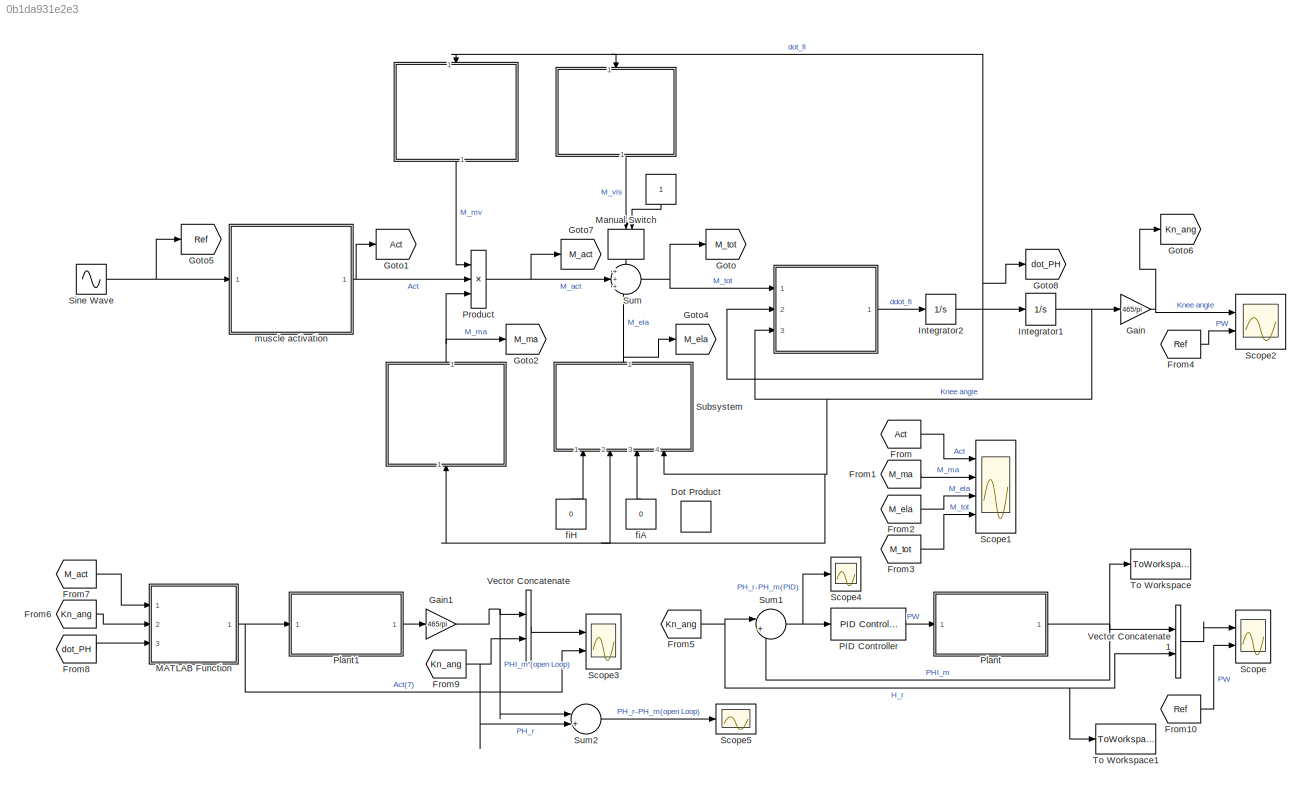
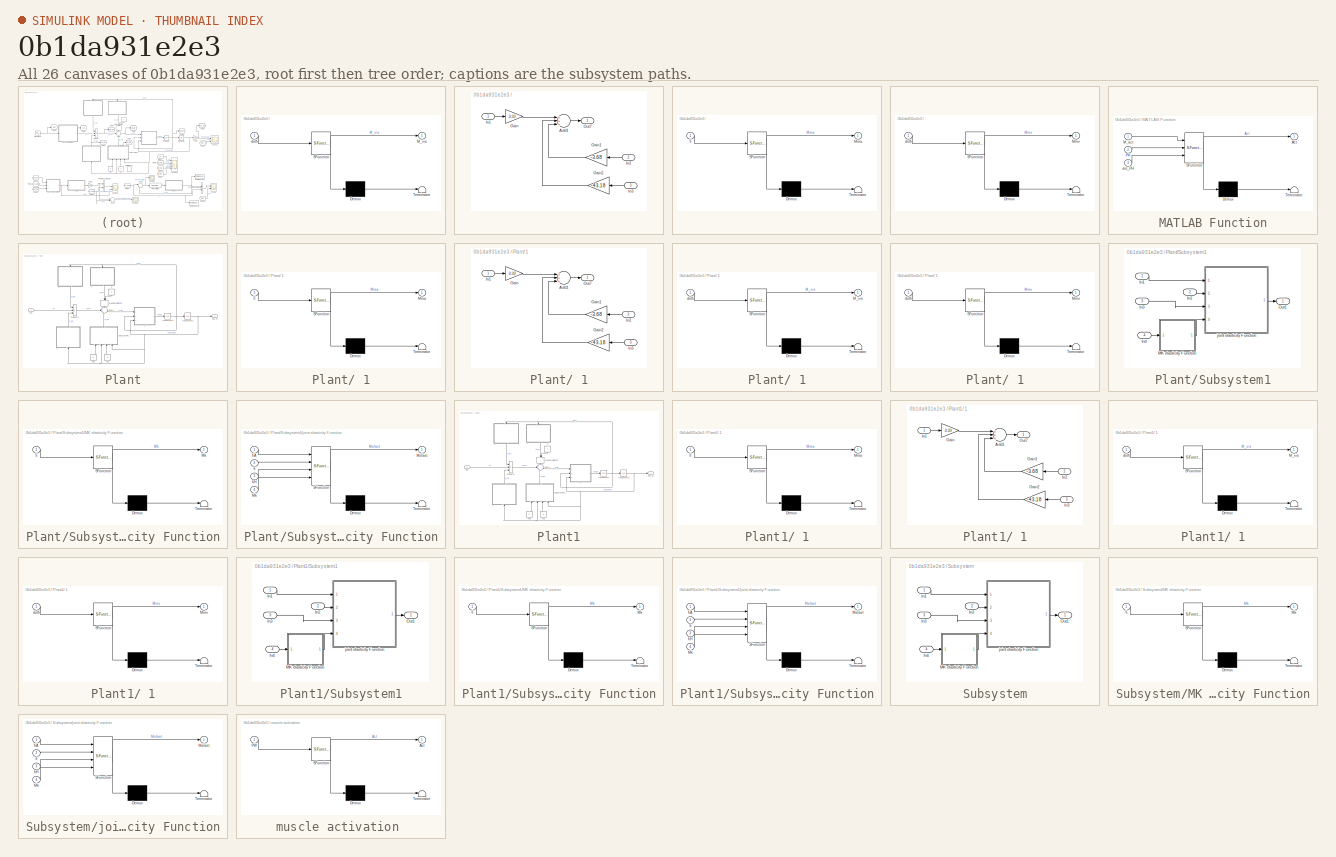
[diagram: thumbnail index - all 26 canvases of the model, root first then tree order]
MODEL slx_0b1da931e2e3
KIND model
CONFIG AbsTol = auto
CONFIG EnableMultiTasking = off
CONFIG FixedStep = 0.00001
CONFIG InitFcn = Ku=1038641.6;\nTu=0.0054;
CONFIG MaxStep = auto
CONFIG MinStep = auto
CONFIG RelTol = 1e-3
CONFIG SampleTimeConstraint = Unconstrained
CONFIG Solver = VariableStepAuto
CONFIG SolverName = VariableStepAuto
CONFIG StartTime = 0.0
CONFIG StopTime = 100
BLOCK [SubSystem]  
  ErrorFcn = Stateflow.Translate.translate
  PermitHierarchicalResolution = ExplicitOnly
  Ports = [1, 1]
  RequestExecContextInheritance = off
  SFBlockType = MATLAB Function
  TreatAsAtomicUnit = on
  Variant = off
BLOCK [Demux]  / Demux 
  Outputs = 1
  Ports = [1, 1]
BLOCK [S-Function]  / SFunction 
  EnableBusSupport = on
  FunctionName = sf_sfun
  PortCounts = [1 2]
  Ports = [1, 2]
  SFcnIsStateOwnerBlock = off
  SFunctionDeploymentMode = off
  Tag = Stateflow S-Function Main 3
BLOCK [Terminator]  / Terminator 
BLOCK [Sum]  /Add1
  InputSameDT = off
  Inputs = +++
  OutDataTypeStr = Inherit: Inherit via internal rule
  Ports = [3, 1]
  SaturateOnIntegerOverflow = off
BLOCK [Gain]  /Gain
  Gain = 3.33
  OutDataTypeStr = Inherit: Inherit via internal rule
  ParamDataTypeStr = Inherit: Inherit via internal rule
  SaturateOnIntegerOverflow = off
BLOCK [Gain]  /Gain1
  Gain = -3.68
  OutDataTypeStr = Inherit: Inherit via internal rule
  ParamDataTypeStr = Inherit: Inherit via internal rule
  SaturateOnIntegerOverflow = off
BLOCK [Gain]  /Gain2
  Gain = -43.18
  OutDataTypeStr = Inherit: Inherit via internal rule
  ParamDataTypeStr = Inherit: Inherit via internal rule
  SaturateOnIntegerOverflow = off
BLOCK [Inport]  /In1 
  IconDisplay = Port number
BLOCK [Inport]  /In2
  IconDisplay = Port number
  Port = 2
BLOCK [Inport]  /In3
  IconDisplay = Port number
  Port = 3
BLOCK [Outport]  /M_vis
  IconDisplay = Port number
BLOCK [Outport]  /Mma
  IconDisplay = Port number
BLOCK [Outport]  /Mmv
  IconDisplay = Port number
BLOCK [Outport]  /Out7
  IconDisplay = Port number
BLOCK [Inport]  /dotfi
  IconDisplay = Port number
BLOCK [Inport]  /fi
  IconDisplay = Port number
BLOCK [DotProduct] Dot Product
  OutDataTypeStr = Inherit: Inherit via internal rule
BLOCK [From] From
  GotoTag = Act
BLOCK [From] From1
  GotoTag = M_ma
BLOCK [From] From10
  GotoTag = Ref
BLOCK [From] From2
  GotoTag = M_ela
BLOCK [From] From3
  GotoTag = M_tot
BLOCK [From] From4
  GotoTag = Ref
BLOCK [From] From5
  GotoTag = Kn_ang
BLOCK [From] From6
  GotoTag = Kn_ang
BLOCK [From] From7
  GotoTag = M_act
BLOCK [From] From8
  GotoTag = dot_PH
BLOCK [From] From9
  GotoTag = Kn_ang
BLOCK [Gain] Gain
  Gain = 465/pi
  OutDataTypeStr = Inherit: Inherit via internal rule
  ParamDataTypeStr = Inherit: Inherit via internal rule
  SaturateOnIntegerOverflow = off
BLOCK [Gain] Gain1
  Gain = 465/pi
  OutDataTypeStr = Inherit: Inherit via internal rule
  ParamDataTypeStr = Inherit: Inherit via internal rule
  SaturateOnIntegerOverflow = off
BLOCK [Goto] Goto
  GotoTag = M_tot
BLOCK [Goto] Goto1
  GotoTag = Act
BLOCK [Goto] Goto2
  GotoTag = M_ma
BLOCK [Goto] Goto4
  GotoTag = M_ela
BLOCK [Goto] Goto5
  GotoTag = Ref
BLOCK [Goto] Goto6
  GotoTag = Kn_ang
BLOCK [Goto] Goto7
  GotoTag = M_act
BLOCK [Goto] Goto8
  GotoTag = dot_PH
BLOCK [Integrator] Integrator1
  InitialCondition = 0.9
  Ports = [1, 1]
BLOCK [Integrator] Integrator2
  InitialCondition = 1.8
  Ports = [1, 1]
BLOCK [SubSystem] MATLAB Function
  ErrorFcn = Stateflow.Translate.translate
  PermitHierarchicalResolution = ExplicitOnly
  Ports = [3, 1]
  RequestExecContextInheritance = off
  SFBlockType = MATLAB Function
  TreatAsAtomicUnit = on
  Variant = off
BLOCK [Demux] MATLAB Function/ Demux 
  Outputs = 1
  Ports = [1, 1]
BLOCK [S-Function] MATLAB Function/ SFunction 
  EnableBusSupport = on
  FunctionName = sf_sfun
  PortCounts = [3 2]
  Ports = [3, 2]
  SFcnIsStateOwnerBlock = off
  SFunctionDeploymentMode = off
  Tag = Stateflow S-Function Main 13
BLOCK [Terminator] MATLAB Function/ Terminator 
BLOCK [Outport] MATLAB Function/Act
  IconDisplay = Port number
BLOCK [Inport] MATLAB Function/M_act
  IconDisplay = Port number
BLOCK [Inport] MATLAB Function/PH
  IconDisplay = Port number
  Port = 2
BLOCK [Inport] MATLAB Function/dot_PH
  IconDisplay = Port number
  Port = 3
BLOCK [ManualSwitch] Manual Switch
BLOCK [Reference] PID Controller  REF=simulink/Continuous/PID Controller
  Ports = [1, 1]
  SourceBlock = simulink/Continuous/PID Controller
  SourceProductBaseCode = SL
  SourceProductName = Simulink
  SourceType = PID 1dof
BLOCK [SubSystem] Plant
  Ports = [1, 1]
  RequestExecContextInheritance = off
  Variant = off
BLOCK [SubSystem] Plant/ 1
  ErrorFcn = Stateflow.Translate.translate
  PermitHierarchicalResolution = ExplicitOnly
  Ports = [1, 1]
  RequestExecContextInheritance = off
  SFBlockType = MATLAB Function
  TreatAsAtomicUnit = on
  Variant = off
BLOCK [Demux] Plant/ 1/ Demux 
  Outputs = 1
  Ports = [1, 1]
BLOCK [S-Function] Plant/ 1/ SFunction 
  EnableBusSupport = on
  FunctionName = sf_sfun
  PortCounts = [1 2]
  Ports = [1, 2]
  SFcnIsStateOwnerBlock = off
  SFunctionDeploymentMode = off
  Tag = Stateflow S-Function Main 9
BLOCK [Terminator] Plant/ 1/ Terminator 
BLOCK [Sum] Plant/ 1/Add1
  InputSameDT = off
  Inputs = +++
  OutDataTypeStr = Inherit: Inherit via internal rule
  Ports = [3, 1]
  SaturateOnIntegerOverflow = off
BLOCK [Gain] Plant/ 1/Gain
  Gain = 3.33
  OutDataTypeStr = Inherit: Inherit via internal rule
  ParamDataTypeStr = Inherit: Inherit via internal rule
  SaturateOnIntegerOverflow = off
BLOCK [Gain] Plant/ 1/Gain1
  Gain = -3.68
  OutDataTypeStr = Inherit: Inherit via internal rule
  ParamDataTypeStr = Inherit: Inherit via internal rule
  SaturateOnIntegerOverflow = off
BLOCK [Gain] Plant/ 1/Gain2
  Gain = -43.18
  OutDataTypeStr = Inherit: Inherit via internal rule
  ParamDataTypeStr = Inherit: Inherit via internal rule
  SaturateOnIntegerOverflow = off
BLOCK [Inport] Plant/ 1/In1 
  IconDisplay = Port number
BLOCK [Inport] Plant/ 1/In2
  IconDisplay = Port number
  Port = 2
BLOCK [Inport] Plant/ 1/In3
  IconDisplay = Port number
  Port = 3
BLOCK [Outport] Plant/ 1/M_vis
  IconDisplay = Port number
BLOCK [Outport] Plant/ 1/Mma
  IconDisplay = Port number
BLOCK [Outport] Plant/ 1/Mmv
  IconDisplay = Port number
BLOCK [Outport] Plant/ 1/Out7
  IconDisplay = Port number
BLOCK [Inport] Plant/ 1/dotfi
  IconDisplay = Port number
BLOCK [Inport] Plant/ 1/fi
  IconDisplay = Port number
BLOCK [Integrator] Plant/Integrator3
  InitialCondition = 0.9
  Ports = [1, 1]
BLOCK [Integrator] Plant/Integrator4
  InitialCondition = 1.8
  Ports = [1, 1]
BLOCK [ManualSwitch] Plant/Manual Switch1
BLOCK [Outport] Plant/PHI_m
  IconDisplay = Port number
BLOCK [Inport] Plant/PW
  IconDisplay = Port number
BLOCK [Product] Plant/Product1
  InputSameDT = off
  Inputs = 3
  OutDataTypeStr = Inherit: Inherit via internal rule
  Ports = [3, 1]
  RndMeth = Floor
  SaturateOnIntegerOverflow = off
BLOCK [SubSystem] Plant/Subsystem1
  Ports = [4, 1]
  RequestExecContextInheritance = off
  Variant = off
BLOCK [Inport] Plant/Subsystem1/In1
  IconDisplay = Port number
BLOCK [Inport] Plant/Subsystem1/In2
  IconDisplay = Port number
  Port = 2
BLOCK [Inport] Plant/Subsystem1/In3
  IconDisplay = Port number
  Port = 3
BLOCK [Inport] Plant/Subsystem1/In4
  IconDisplay = Port number
  Port = 4
BLOCK [SubSystem] Plant/Subsystem1/MK elasticity Function
  ErrorFcn = Stateflow.Translate.translate
  PermitHierarchicalResolution = ExplicitOnly
  Ports = [1, 1]
  RequestExecContextInheritance = off
  SFBlockType = MATLAB Function
  TreatAsAtomicUnit = on
  Variant = off
BLOCK [Demux] Plant/Subsystem1/MK elasticity Function/ Demux 
  Outputs = 1
  Ports = [1, 1]
BLOCK [S-Function] Plant/Subsystem1/MK elasticity Function/ SFunction 
  EnableBusSupport = on
  FunctionName = sf_sfun
  PortCounts = [1 2]
  Ports = [1, 2]
  SFcnIsStateOwnerBlock = off
  SFunctionDeploymentMode = off
  Tag = Stateflow S-Function Main 10
BLOCK [Terminator] Plant/Subsystem1/MK elasticity Function/ Terminator 
BLOCK [Outport] Plant/Subsystem1/MK elasticity Function/Mk
  IconDisplay = Port number
BLOCK [Inport] Plant/Subsystem1/MK elasticity Function/fi
  IconDisplay = Port number
BLOCK [Outport] Plant/Subsystem1/Out1
  IconDisplay = Port number
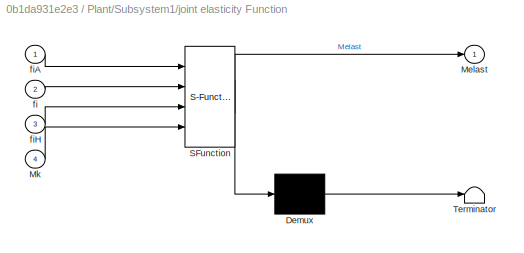
BLOCK [SubSystem] Plant/Subsystem1/joint elasticity Function
  ErrorFcn = Stateflow.Translate.translate
  PermitHierarchicalResolution = ExplicitOnly
  Ports = [4, 1]
  RequestExecContextInheritance = off
  SFBlockType = MATLAB Function
  TreatAsAtomicUnit = on
  Variant = off
BLOCK [Demux] Plant/Subsystem1/joint elasticity Function/ Demux 
  Outputs = 1
  Ports = [1, 1]
BLOCK [S-Function] Plant/Subsystem1/joint elasticity Function/ SFunction 
  EnableBusSupport = on
  FunctionName = sf_sfun
  PortCounts = [4 2]
  Ports = [4, 2]
  SFcnIsStateOwnerBlock = off
  SFunctionDeploymentMode = off
  Tag = Stateflow S-Function Main 11
BLOCK [Terminator] Plant/Subsystem1/joint elasticity Function/ Terminator 
BLOCK [Outport] Plant/Subsystem1/joint elasticity Function/Melast
  IconDisplay = Port number
BLOCK [Inport] Plant/Subsystem1/joint elasticity Function/Mk
  IconDisplay = Port number
  Port = 4
BLOCK [Inport] Plant/Subsystem1/joint elasticity Function/fi
  IconDisplay = Port number
  Port = 2
BLOCK [Inport] Plant/Subsystem1/joint elasticity Function/fiA
  IconDisplay = Port number
BLOCK [Inport] Plant/Subsystem1/joint elasticity Function/fiH
  IconDisplay = Port number
  Port = 3
BLOCK [Sum] Plant/Sum1
  IconShape = round
  InputSameDT = off
  Inputs = +++
  OutDataTypeStr = Inherit: Inherit via internal rule
  Ports = [3, 1]
  SaturateOnIntegerOverflow = off
BLOCK [Constant] Plant/fiA1
  Value = 0
BLOCK [Constant] Plant/fiH1
  Value = 0
BLOCK [SubSystem] Plant1
  Ports = [1, 1]
  RequestExecContextInheritance = off
  Variant = off
BLOCK [SubSystem] Plant1/ 1
  ErrorFcn = Stateflow.Translate.translate
  PermitHierarchicalResolution = ExplicitOnly
  Ports = [1, 1]
  RequestExecContextInheritance = off
  SFBlockType = MATLAB Function
  TreatAsAtomicUnit = on
  Variant = off
BLOCK [Demux] Plant1/ 1/ Demux 
  Outputs = 1
  Ports = [1, 1]
BLOCK [S-Function] Plant1/ 1/ SFunction 
  EnableBusSupport = on
  FunctionName = sf_sfun
  PortCounts = [1 2]
  Ports = [1, 2]
  SFcnIsStateOwnerBlock = off
  SFunctionDeploymentMode = off
  Tag = Stateflow S-Function Main 15
BLOCK [Terminator] Plant1/ 1/ Terminator 
BLOCK [Sum] Plant1/ 1/Add1
  InputSameDT = off
  Inputs = +++
  OutDataTypeStr = Inherit: Inherit via internal rule
  Ports = [3, 1]
  SaturateOnIntegerOverflow = off
BLOCK [Gain] Plant1/ 1/Gain
  Gain = 3.33
  OutDataTypeStr = Inherit: Inherit via internal rule
  ParamDataTypeStr = Inherit: Inherit via internal rule
  SaturateOnIntegerOverflow = off
BLOCK [Gain] Plant1/ 1/Gain1
  Gain = -3.68
  OutDataTypeStr = Inherit: Inherit via internal rule
  ParamDataTypeStr = Inherit: Inherit via internal rule
  SaturateOnIntegerOverflow = off
BLOCK [Gain] Plant1/ 1/Gain2
  Gain = -43.18
  OutDataTypeStr = Inherit: Inherit via internal rule
  ParamDataTypeStr = Inherit: Inherit via internal rule
  SaturateOnIntegerOverflow = off
BLOCK [Inport] Plant1/ 1/In1 
  IconDisplay = Port number
BLOCK [Inport] Plant1/ 1/In2
  IconDisplay = Port number
  Port = 2
BLOCK [Inport] Plant1/ 1/In3
  IconDisplay = Port number
  Port = 3
BLOCK [Outport] Plant1/ 1/M_vis
  IconDisplay = Port number
BLOCK [Outport] Plant1/ 1/Mma
  IconDisplay = Port number
BLOCK [Outport] Plant1/ 1/Mmv
  IconDisplay = Port number
BLOCK [Outport] Plant1/ 1/Out7
  IconDisplay = Port number
BLOCK [Inport] Plant1/ 1/dotfi
  IconDisplay = Port number
BLOCK [Inport] Plant1/ 1/fi
  IconDisplay = Port number
BLOCK [Integrator] Plant1/Integrator3
  InitialCondition = 0.9
  Ports = [1, 1]
BLOCK [Integrator] Plant1/Integrator4
  InitialCondition = 1.8
  Ports = [1, 1]
BLOCK [ManualSwitch] Plant1/Manual Switch1
BLOCK [Outport] Plant1/PHI_m
  IconDisplay = Port number
BLOCK [Inport] Plant1/PW
  IconDisplay = Port number
BLOCK [Product] Plant1/Product1
  InputSameDT = off
  Inputs = 3
  OutDataTypeStr = Inherit: Inherit via internal rule
  Ports = [3, 1]
  RndMeth = Floor
  SaturateOnIntegerOverflow = off
BLOCK [SubSystem] Plant1/Subsystem1
  Ports = [4, 1]
  RequestExecContextInheritance = off
  Variant = off
BLOCK [Inport] Plant1/Subsystem1/In1
  IconDisplay = Port number
BLOCK [Inport] Plant1/Subsystem1/In2
  IconDisplay = Port number
  Port = 2
BLOCK [Inport] Plant1/Subsystem1/In3
  IconDisplay = Port number
  Port = 3
BLOCK [Inport] Plant1/Subsystem1/In4
  IconDisplay = Port number
  Port = 4
BLOCK [SubSystem] Plant1/Subsystem1/MK elasticity Function
  ErrorFcn = Stateflow.Translate.translate
  PermitHierarchicalResolution = ExplicitOnly
  Ports = [1, 1]
  RequestExecContextInheritance = off
  SFBlockType = MATLAB Function
  TreatAsAtomicUnit = on
  Variant = off
BLOCK [Demux] Plant1/Subsystem1/MK elasticity Function/ Demux 
  Outputs = 1
  Ports = [1, 1]
BLOCK [S-Function] Plant1/Subsystem1/MK elasticity Function/ SFunction 
  EnableBusSupport = on
  FunctionName = sf_sfun
  PortCounts = [1 2]
  Ports = [1, 2]
  SFcnIsStateOwnerBlock = off
  SFunctionDeploymentMode = off
  Tag = Stateflow S-Function Main 16
BLOCK [Terminator] Plant1/Subsystem1/MK elasticity Function/ Terminator 
BLOCK [Outport] Plant1/Subsystem1/MK elasticity Function/Mk
  IconDisplay = Port number
BLOCK [Inport] Plant1/Subsystem1/MK elasticity Function/fi
  IconDisplay = Port number
BLOCK [Outport] Plant1/Subsystem1/Out1
  IconDisplay = Port number
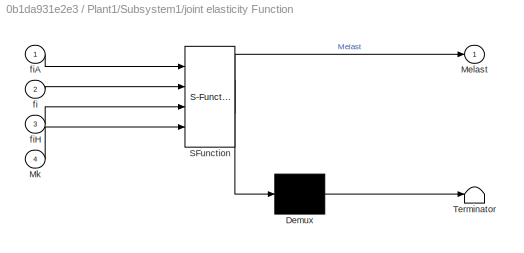
BLOCK [SubSystem] Plant1/Subsystem1/joint elasticity Function
  ErrorFcn = Stateflow.Translate.translate
  PermitHierarchicalResolution = ExplicitOnly
  Ports = [4, 1]
  RequestExecContextInheritance = off
  SFBlockType = MATLAB Function
  TreatAsAtomicUnit = on
  Variant = off
BLOCK [Demux] Plant1/Subsystem1/joint elasticity Function/ Demux 
  Outputs = 1
  Ports = [1, 1]
BLOCK [S-Function] Plant1/Subsystem1/joint elasticity Function/ SFunction 
  EnableBusSupport = on
  FunctionName = sf_sfun
  PortCounts = [4 2]
  Ports = [4, 2]
  SFcnIsStateOwnerBlock = off
  SFunctionDeploymentMode = off
  Tag = Stateflow S-Function Main 17
BLOCK [Terminator] Plant1/Subsystem1/joint elasticity Function/ Terminator 
BLOCK [Outport] Plant1/Subsystem1/joint elasticity Function/Melast
  IconDisplay = Port number
BLOCK [Inport] Plant1/Subsystem1/joint elasticity Function/Mk
  IconDisplay = Port number
  Port = 4
BLOCK [Inport] Plant1/Subsystem1/joint elasticity Function/fi
  IconDisplay = Port number
  Port = 2
BLOCK [Inport] Plant1/Subsystem1/joint elasticity Function/fiA
  IconDisplay = Port number
BLOCK [Inport] Plant1/Subsystem1/joint elasticity Function/fiH
  IconDisplay = Port number
  Port = 3
BLOCK [Sum] Plant1/Sum1
  IconShape = round
  InputSameDT = off
  Inputs = +++
  OutDataTypeStr = Inherit: Inherit via internal rule
  Ports = [3, 1]
  SaturateOnIntegerOverflow = off
BLOCK [Constant] Plant1/fiA1
  Value = 0
BLOCK [Constant] Plant1/fiH1
  Value = 0
BLOCK [Product] Product
  InputSameDT = off
  Inputs = 3
  OutDataTypeStr = Inherit: Inherit via internal rule
  Ports = [3, 1]
  RndMeth = Floor
  SaturateOnIntegerOverflow = off
BLOCK [Scope] Scope
  NumInputPorts = 2
  Ports = [2]
  ScopeSpecificationString = Simulink.scopes.TimeScopeBlockCfg('CurrentConfiguration', extmgr.ConfigurationSet(extmgr.Configuration('Core','General UI',true,'FigureColor',[1 1 1]),extmgr.Configuration('Core','Source UI',true),extmgr.Configuration('Sources','WiredSimulink',true,'DataLoggingVariableName','ScopeData2'),extmgr.Configuration('Visuals','Time Domain',true,'SerializedDisplays',{struct('MinYLimReal','-26.94496','MaxYL...<+2378ch>
BLOCK [Scope] Scope1
  NumInputPorts = 4
  Ports = [4]
  ScopeSpecificationString = Simulink.scopes.TimeScopeBlockCfg('CurrentConfiguration', extmgr.ConfigurationSet(extmgr.Configuration('Core','General UI',true,'FigureColor',[1 1 1]),extmgr.Configuration('Core','Source UI',true),extmgr.Configuration('Sources','WiredSimulink',true,'DataLoggingVariableName','ScopeData1'),extmgr.Configuration('Visuals','Time Domain',true,'SerializedDisplays',{struct('MinYLimReal','-0.70312','MaxYLi...<+4710ch>
BLOCK [Scope] Scope2
  NumInputPorts = 2
  Ports = [2]
  ScopeSpecificationString = Simulink.scopes.TimeScopeBlockCfg('CurrentConfiguration', extmgr.ConfigurationSet(extmgr.Configuration('Core','General UI',true,'FigureColor',[1 1 1]),extmgr.Configuration('Core','Source UI',true),extmgr.Configuration('Sources','WiredSimulink',true,'DataLoggingVariableName','ScopeData1'),extmgr.Configuration('Visuals','Time Domain',true,'SerializedDisplays',{struct('MinYLimReal','99.82579','MaxYLi...<+3131ch>
BLOCK [Scope] Scope3
  NumInputPorts = 2
  Ports = [2]
  ScopeSpecificationString = Simulink.scopes.TimeScopeBlockCfg('CurrentConfiguration', extmgr.ConfigurationSet(extmgr.Configuration('Core','General UI',true,'FigureColor',[1 1 1]),extmgr.Configuration('Core','Source UI',true),extmgr.Configuration('Sources','WiredSimulink',true,'DataLoggingVariableName','ScopeData1'),extmgr.Configuration('Visuals','Time Domain',true,'SerializedDisplays',{struct('MinYLimReal','100','MaxYLimReal...<+2437ch>
BLOCK [Scope] Scope4
  NumInputPorts = 1
  Ports = [1]
  ScopeSpecificationString = Simulink.scopes.TimeScopeBlockCfg('CurrentConfiguration', extmgr.ConfigurationSet(extmgr.Configuration('Core','General UI',true,'FigureColor',[1 1 1]),extmgr.Configuration('Core','Source UI',true),extmgr.Configuration('Sources','WiredSimulink',true,'DataLoggingVariableName','ScopeData1'),extmgr.Configuration('Visuals','Time Domain',true,'SerializedDisplays',{struct('MinYLimReal','-21.46618','MaxYL...<+1826ch>
BLOCK [Scope] Scope5
  NumInputPorts = 1
  Ports = [1]
  ScopeSpecificationString = Simulink.scopes.TimeScopeBlockCfg('CurrentConfiguration', extmgr.ConfigurationSet(extmgr.Configuration('Core','General UI',true,'FigureColor',[1 1 1]),extmgr.Configuration('Core','Source UI',true),extmgr.Configuration('Sources','WiredSimulink',true,'DataLoggingVariableName','ScopeData2'),extmgr.Configuration('Visuals','Time Domain',true,'SerializedDisplays',{struct('MinYLimReal','-4.0095','MaxYLim...<+1838ch>
BLOCK [Sin] Sine Wave
  Amplitude = 100
  Bias = 150
  Frequency = 1.5707
  Ports = [0, 1]
  SampleTime = 0.04
  Samples = 31.38
  VectorParams1D = off
BLOCK [SubSystem] Subsystem
  Ports = [4, 1]
  RequestExecContextInheritance = off
  Variant = off
BLOCK [Inport] Subsystem/In1
  IconDisplay = Port number
BLOCK [Inport] Subsystem/In2
  IconDisplay = Port number
  Port = 2
BLOCK [Inport] Subsystem/In3
  IconDisplay = Port number
  Port = 3
BLOCK [Inport] Subsystem/In4
  IconDisplay = Port number
  Port = 4
BLOCK [SubSystem] Subsystem/MK elasticity Function
  ErrorFcn = Stateflow.Translate.translate
  PermitHierarchicalResolution = ExplicitOnly
  Ports = [1, 1]
  RequestExecContextInheritance = off
  SFBlockType = MATLAB Function
  TreatAsAtomicUnit = on
  Variant = off
BLOCK [Demux] Subsystem/MK elasticity Function/ Demux 
  Outputs = 1
  Ports = [1, 1]
BLOCK [S-Function] Subsystem/MK elasticity Function/ SFunction 
  EnableBusSupport = on
  FunctionName = sf_sfun
  PortCounts = [1 2]
  Ports = [1, 2]
  SFcnIsStateOwnerBlock = off
  SFunctionDeploymentMode = off
  Tag = Stateflow S-Function Main 4
BLOCK [Terminator] Subsystem/MK elasticity Function/ Terminator 
BLOCK [Outport] Subsystem/MK elasticity Function/Mk
  IconDisplay = Port number
BLOCK [Inport] Subsystem/MK elasticity Function/fi
  IconDisplay = Port number
BLOCK [Outport] Subsystem/Out1
  IconDisplay = Port number
BLOCK [SubSystem] Subsystem/joint elasticity Function
  ErrorFcn = Stateflow.Translate.translate
  PermitHierarchicalResolution = ExplicitOnly
  Ports = [4, 1]
  RequestExecContextInheritance = off
  SFBlockType = MATLAB Function
  TreatAsAtomicUnit = on
  Variant = off
BLOCK [Demux] Subsystem/joint elasticity Function/ Demux 
  Outputs = 1
  Ports = [1, 1]
BLOCK [S-Function] Subsystem/joint elasticity Function/ SFunction 
  EnableBusSupport = on
  FunctionName = sf_sfun
  PortCounts = [4 2]
  Ports = [4, 2]
  SFcnIsStateOwnerBlock = off
  SFunctionDeploymentMode = off
  Tag = Stateflow S-Function Main 5
BLOCK [Terminator] Subsystem/joint elasticity Function/ Terminator 
BLOCK [Outport] Subsystem/joint elasticity Function/Melast
  IconDisplay = Port number
BLOCK [Inport] Subsystem/joint elasticity Function/Mk
  IconDisplay = Port number
  Port = 4
BLOCK [Inport] Subsystem/joint elasticity Function/fi
  IconDisplay = Port number
  Port = 2
BLOCK [Inport] Subsystem/joint elasticity Function/fiA
  IconDisplay = Port number
BLOCK [Inport] Subsystem/joint elasticity Function/fiH
  IconDisplay = Port number
  Port = 3
BLOCK [Sum] Sum
  IconShape = round
  InputSameDT = off
  Inputs = +++
  OutDataTypeStr = Inherit: Inherit via internal rule
  Ports = [3, 1]
  SaturateOnIntegerOverflow = off
BLOCK [Sum] Sum1
  IconShape = round
  InputSameDT = off
  Inputs = |+-
  OutDataTypeStr = Inherit: Inherit via internal rule
  Ports = [2, 1]
  SaturateOnIntegerOverflow = off
BLOCK [Sum] Sum2
  IconShape = round
  InputSameDT = off
  Inputs = |+-
  OutDataTypeStr = Inherit: Inherit via internal rule
  Ports = [2, 1]
  SaturateOnIntegerOverflow = off
BLOCK [ToWorkspace] To Workspace
  FixptAsFi = on
  MaxDataPoints = inf
  Ports = [1]
  SampleTime = -1
  Save2DSignal = 2-D array (concatenate along first dimension)
  VariableName = PHI_m_PID
BLOCK [ToWorkspace] To Workspace1
  FixptAsFi = on
  MaxDataPoints = inf
  Ports = [1]
  SampleTime = -1
  Save2DSignal = 2-D array (concatenate along first dimension)
  VariableName = PHI_r_PID
BLOCK [Concatenate] Vector Concatenate
  Ports = [2, 1]
BLOCK [Concatenate] Vector Concatenate1
  Ports = [2, 1]
BLOCK [Constant] fiA
  Value = 0
BLOCK [Constant] fiH
  Value = 0
BLOCK [SubSystem] muscle activation 
  ErrorFcn = Stateflow.Translate.translate
  PermitHierarchicalResolution = ExplicitOnly
  Ports = [1, 1]
  RequestExecContextInheritance = off
  SFBlockType = MATLAB Function
  TreatAsAtomicUnit = on
  Variant = off
BLOCK [Demux] muscle activation / Demux 
  Outputs = 1
  Ports = [1, 1]
BLOCK [S-Function] muscle activation / SFunction 
  EnableBusSupport = on
  FunctionName = sf_sfun
  PortCounts = [1 2]
  Ports = [1, 2]
  SFcnIsStateOwnerBlock = off
  SFunctionDeploymentMode = off
  Tag = Stateflow S-Function Main 2
BLOCK [Terminator] muscle activation / Terminator 
BLOCK [Outport] muscle activation /Act
  IconDisplay = Port number
BLOCK [Inport] muscle activation /PW
  IconDisplay = Port number
LINE  /Add1:1 ->  /Out7:1
LINE  /Gain1:1 ->  /Add1:3
LINE  /Gain2:1 ->  /Add1:2
LINE  /Gain:1 ->  /Add1:1
LINE  /In1 :1 ->  /Gain:1
LINE  /In2:1 ->  /Gain1:1
LINE  /In3:1 ->  /Gain2:1
NET  :1 -> Goto2:1, Integrator2:1, Manual Switch:1, Manual Switch:2, Product:1, Product:3
LINE From10:1 -> Scope:2
LINE From1:1 -> Scope1:2
LINE From2:1 -> Scope1:3
LINE From3:1 -> Scope1:4
LINE From4:1 -> Scope2:2
NET From5:1 -> Sum1:1, To Workspace1:1, Vector Concatenate1:2
LINE From6:1 -> MATLAB Function:2
LINE From7:1 -> MATLAB Function:1
LINE From8:1 -> MATLAB Function:3
NET From9:1 -> Sum2:2, Vector Concatenate:2
LINE From:1 -> Scope1:1
NET Gain1:1 -> Sum2:1, Vector Concatenate:1
NET Gain:1 -> Goto6:1, Scope2:1
NET Integrator1:1 ->  :1,  :3, Gain:1, Subsystem:2, Subsystem:4
NET Integrator2:1 ->  :1,  :2, Goto8:1, Integrator1:1
NET MATLAB Function:1 -> Plant1:1, Scope3:2
LINE Manual Switch:1 -> Sum:1
LINE PID Controller:1 -> Plant:1
LINE Plant/ 1/Add1:1 -> Plant/ 1/Out7:1
LINE Plant/ 1/Gain1:1 -> Plant/ 1/Add1:3
LINE Plant/ 1/Gain2:1 -> Plant/ 1/Add1:2
LINE Plant/ 1/Gain:1 -> Plant/ 1/Add1:1
LINE Plant/ 1/In1 :1 -> Plant/ 1/Gain:1
LINE Plant/ 1/In2:1 -> Plant/ 1/Gain1:1
LINE Plant/ 1/In3:1 -> Plant/ 1/Gain2:1
NET Plant/ 1:1 -> Plant/Integrator4:1, Plant/Manual Switch1:1, Plant/Manual Switch1:2, Plant/Product1:1, Plant/Product1:3
NET Plant/Integrator3:1 -> Plant/ 1:1, Plant/ 1:3, Plant/PHI_m:1, Plant/Subsystem1:2, Plant/Subsystem1:4
NET Plant/Integrator4:1 -> Plant/ 1:1, Plant/ 1:2, Plant/Integrator3:1
LINE Plant/Manual Switch1:1 -> Plant/Sum1:1
LINE Plant/PW:1 -> Plant/Product1:2
LINE Plant/Product1:1 -> Plant/Sum1:2
LINE Plant/Subsystem1/In1:1 -> Plant/Subsystem1/joint elasticity Function:1
LINE Plant/Subsystem1/In2:1 -> Plant/Subsystem1/joint elasticity Function:2
LINE Plant/Subsystem1/In3:1 -> Plant/Subsystem1/joint elasticity Function:3
LINE Plant/Subsystem1/In4:1 -> Plant/Subsystem1/MK elasticity Function:1
LINE Plant/Subsystem1/MK elasticity Function:1 -> Plant/Subsystem1/joint elasticity Function:4
LINE Plant/Subsystem1/joint elasticity Function:1 -> Plant/Subsystem1/Out1:1
LINE Plant/Subsystem1:1 -> Plant/Sum1:3
LINE Plant/Sum1:1 -> Plant/ 1:1
LINE Plant/fiA1:1 -> Plant/Subsystem1:3
LINE Plant/fiH1:1 -> Plant/Subsystem1:1
LINE Plant1/ 1/Add1:1 -> Plant1/ 1/Out7:1
LINE Plant1/ 1/Gain1:1 -> Plant1/ 1/Add1:3
LINE Plant1/ 1/Gain2:1 -> Plant1/ 1/Add1:2
LINE Plant1/ 1/Gain:1 -> Plant1/ 1/Add1:1
LINE Plant1/ 1/In1 :1 -> Plant1/ 1/Gain:1
LINE Plant1/ 1/In2:1 -> Plant1/ 1/Gain1:1
LINE Plant1/ 1/In3:1 -> Plant1/ 1/Gain2:1
NET Plant1/ 1:1 -> Plant1/Integrator4:1, Plant1/Manual Switch1:1, Plant1/Manual Switch1:2, Plant1/Product1:1, Plant1/Product1:3
NET Plant1/Integrator3:1 -> Plant1/ 1:1, Plant1/ 1:3, Plant1/PHI_m:1, Plant1/Subsystem1:2, Plant1/Subsystem1:4
NET Plant1/Integrator4:1 -> Plant1/ 1:1, Plant1/ 1:2, Plant1/Integrator3:1
LINE Plant1/Manual Switch1:1 -> Plant1/Sum1:1
LINE Plant1/PW:1 -> Plant1/Product1:2
LINE Plant1/Product1:1 -> Plant1/Sum1:2
LINE Plant1/Subsystem1/In1:1 -> Plant1/Subsystem1/joint elasticity Function:1
LINE Plant1/Subsystem1/In2:1 -> Plant1/Subsystem1/joint elasticity Function:2
LINE Plant1/Subsystem1/In3:1 -> Plant1/Subsystem1/joint elasticity Function:3
LINE Plant1/Subsystem1/In4:1 -> Plant1/Subsystem1/MK elasticity Function:1
LINE Plant1/Subsystem1/MK elasticity Function:1 -> Plant1/Subsystem1/joint elasticity Function:4
LINE Plant1/Subsystem1/joint elasticity Function:1 -> Plant1/Subsystem1/Out1:1
LINE Plant1/Subsystem1:1 -> Plant1/Sum1:3
LINE Plant1/Sum1:1 -> Plant1/ 1:1
LINE Plant1/fiA1:1 -> Plant1/Subsystem1:3
LINE Plant1/fiH1:1 -> Plant1/Subsystem1:1
LINE Plant1:1 -> Gain1:1
NET Plant:1 -> Sum1:2, To Workspace:1, Vector Concatenate1:1
NET Product:1 -> Goto7:1, Sum:2
NET Sine Wave:1 -> Goto5:1, muscle activation :1
LINE Subsystem/In1:1 -> Subsystem/joint elasticity Function:1
LINE Subsystem/In2:1 -> Subsystem/joint elasticity Function:2
LINE Subsystem/In3:1 -> Subsystem/joint elasticity Function:3
LINE Subsystem/In4:1 -> Subsystem/MK elasticity Function:1
LINE Subsystem/MK elasticity Function:1 -> Subsystem/joint elasticity Function:4
LINE Subsystem/joint elasticity Function:1 -> Subsystem/Out1:1
NET Subsystem:1 -> Goto4:1, Sum:3
NET Sum1:1 -> PID Controller:1, Scope4:1
LINE Sum2:1 -> Scope5:1
NET Sum:1 ->  :1, Goto:1
LINE Vector Concatenate1:1 -> Scope:1
LINE Vector Concatenate:1 -> Scope3:1
LINE fiA:1 -> Subsystem:3
LINE fiH:1 -> Subsystem:1
NET muscle activation :1 -> Goto1:1, Product:2
note: NET lines group one-source signal fan-out (src -> all destinations, sorted); 1:1 wires keep LINE
CHART 




  


 states=1 transitions=1
  STATE_LABEL 'eML_blk_kernel()'
  STATE_LABEL 'SCRIPT:\nfunction Mma = fcn(fi)\nk1=60;\nk2=65;\n Mma= exp(-((fi-k1)/k2)^2);\n'
CHART muscle activation  states=1 transitions=1
  STATE_LABEL 'eML_blk_kernel()'
  STATE_LABEL 'SCRIPT:\nfunction Act=fcn(PW)\nSf=15;\nThres=100;\nSat=500;\nif  PW<=Thres\n    Act=0;\nelseif (Thres<PW) && (PW<Sat)\n    Act=(Sf/(Sat-Thres))*(PW-Thres);\nelse\n    Act=Sf;\nend\nend\n'
CHART 
  states=1 transitions=1
  STATE_LABEL 'eML_blk_kernel()'
  STATE_LABEL 'SCRIPT:\nfunction Mmv= fcn(dotfi)\nk3=0.04;\nMmv=1-(k3*dotfi);'
CHART Subsystem/MK elasticity Function states=1 transitions=1
  STATE_LABEL 'eML_blk_kernel()'
  STATE_LABEL 'SCRIPT:\nfunction Mk = fcn(fi)\nMk=exp(2.220-(0.150*fi));\n\n'
CHART Subsystem/joint elasticity Function states=1 transitions=1
  STATE_LABEL 'eML_blk_kernel()'
  STATE_LABEL 'SCRIPT:\nfunction Melast = fcn(fiA,fi,fiH,Mk)\nMelast = exp(1.800-(0.0460*fiA)+(0.0217*fiH)-(0.0352*fi))- exp(-3.971-(0.0004*fiA)-(0.0495*fi)-(0.0128*fiH))-4.820+Mk;'
CHART Plant/




  


1 states=1 transitions=1
  STATE_LABEL 'eML_blk_kernel()'
  STATE_LABEL 'SCRIPT:\nfunction Mma = fcn(fi)\nk1=60;\nk2=65;\n Mma= exp(-((fi-k1)/k2)^2);\n'
CHART Plant/


1 states=1 transitions=1
  STATE_LABEL 'eML_blk_kernel()'
  STATE_LABEL 'SCRIPT:\nfunction M_vis = fcn(dotfi)\nM_vis=-0.86*dotfi;\n\n'
CHART 


 states=1 transitions=1
  STATE_LABEL 'eML_blk_kernel()'
  STATE_LABEL 'SCRIPT:\nfunction M_vis = fcn(dotfi)\nM_vis=-0.86*dotfi;\n\n'
CHART Plant/
 1 states=1 transitions=1
  STATE_LABEL 'eML_blk_kernel()'
  STATE_LABEL 'SCRIPT:\nfunction Mmv= fcn(dotfi)\nk3=0.04;\nMmv=1-(k3*dotfi);'
CHART Plant/Subsystem1/MK elasticity Function states=1 transitions=1
  STATE_LABEL 'eML_blk_kernel()'
  STATE_LABEL 'SCRIPT:\nfunction Mk = fcn(fi)\nMk=exp(2.220-(0.150*fi));\n\n'
CHART Plant/Subsystem1/joint elasticity Function states=1 transitions=1
  STATE_LABEL 'eML_blk_kernel()'
  STATE_LABEL 'SCRIPT:\nfunction Melast = fcn(fiA,fi,fiH,Mk)\nMelast = exp(1.800-(0.0460*fiA)+(0.0217*fiH)-(0.0352*fi))- exp(-3.971-(0.0004*fiA)-(0.0495*fi)-(0.0128*fiH))-4.820+Mk;'
CHART Plant1/




  


1 states=1 transitions=1
  STATE_LABEL 'eML_blk_kernel()'
  STATE_LABEL 'SCRIPT:\nfunction Mma = fcn(fi)\nk1=60;\nk2=65;\n Mma= exp(-((fi-k1)/k2)^2);\n'
CHART MATLAB Function states=1 transitions=1
  STATE_LABEL 'eML_blk_kernel()'
  STATE_LABEL 'SCRIPT:\nfunction Act = fcn(M_act,PH,dot_PH)\nk1=60;\nk2=65;\nk3=0.04;\nAct=(M_act*exp(((PH-k1)/k2)^2))/(1-k3*dot_PH);\n'
CHART Plant1/


1 states=1 transitions=1
  STATE_LABEL 'eML_blk_kernel()'
  STATE_LABEL 'SCRIPT:\nfunction M_vis = fcn(dotfi)\nM_vis=-0.86*dotfi;\n\n'
CHART Plant1/
 1 states=1 transitions=1
  STATE_LABEL 'eML_blk_kernel()'
  STATE_LABEL 'SCRIPT:\nfunction Mmv= fcn(dotfi)\nk3=0.04;\nMmv=1-(k3*dotfi);'
CHART Plant1/Subsystem1/MK elasticity Function states=1 transitions=1
  STATE_LABEL 'eML_blk_kernel()'
  STATE_LABEL 'SCRIPT:\nfunction Mk = fcn(fi)\nMk=exp(2.220-(0.150*fi));\n\n'
CHART Plant1/Subsystem1/joint elasticity Function states=1 transitions=1
  STATE_LABEL 'eML_blk_kernel()'
  STATE_LABEL 'SCRIPT:\nfunction Melast = fcn(fiA,fi,fiH,Mk)\nMelast = exp(1.800-(0.0460*fiA)+(0.0217*fiH)-(0.0352*fi))- exp(-3.971-(0.0004*fiA)-(0.0495*fi)-(0.0128*fiH))-4.820+Mk;'
